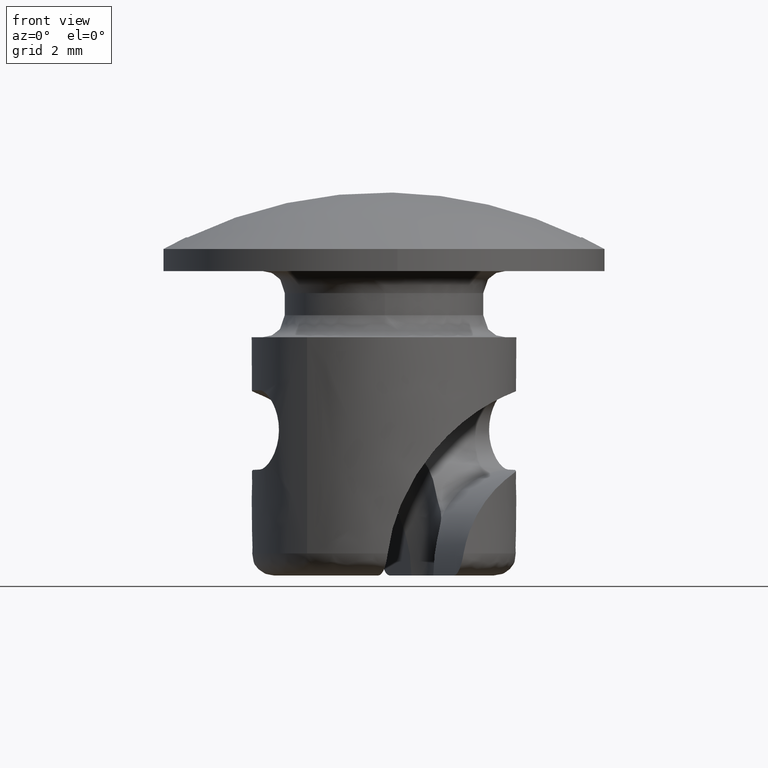
[diagram: clean part render]
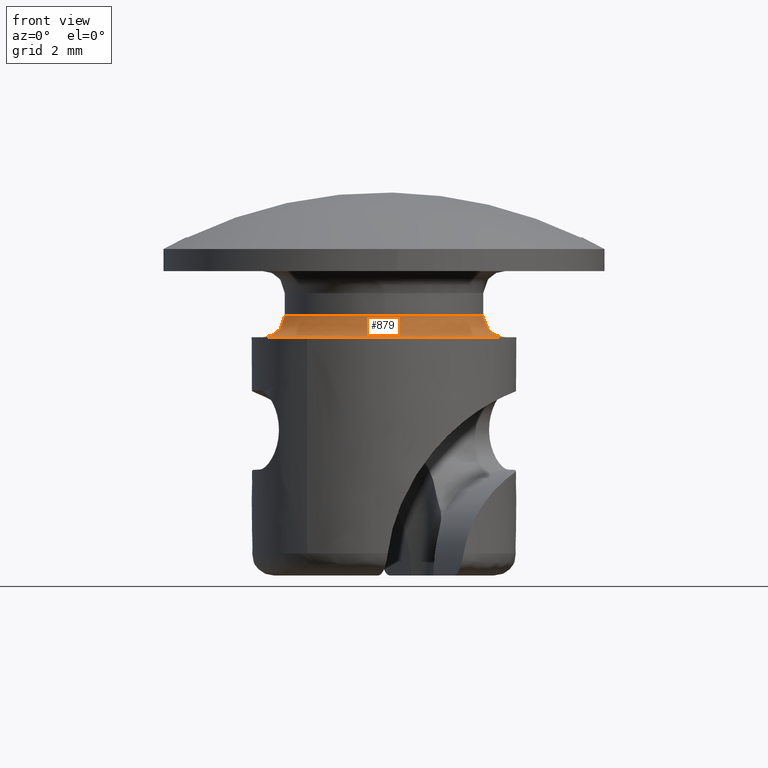
[diagram: same view with one face highlighted and labeled with its STEP entity id]
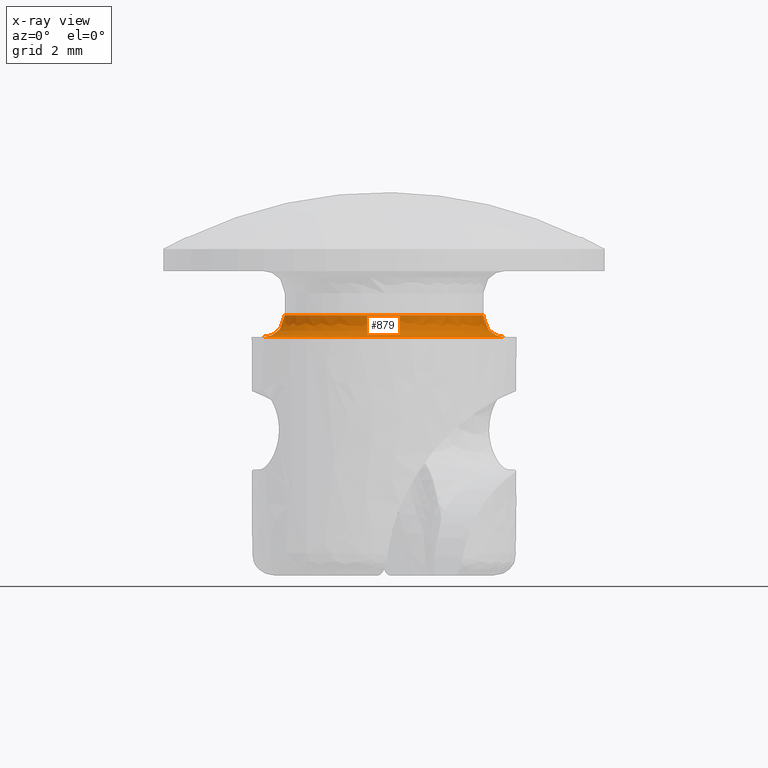
[diagram: x-ray of the same camera — body ghosted, the highlighted face saturated]
A machine part, front view. The second image highlights one B-rep face of the part: STEP entity #879.
The next image is the same camera in x-ray: the body ghosted, the highlighted face saturated — about 0% of this face is hidden behind the body in this view.
In plain terms, the highlighted face is a freeform B-spline surface patch.
Its self-contained STEP definition (entity closure, byte-faithful):
#642=CARTESIAN_POINT('',(-2.249822349458519,0.028273589742916,-1.000000019662934));
#643=VERTEX_POINT('',#642);
#657=CARTESIAN_POINT('',(-2.250000000000000,0.0,-1.0));
#658=VERTEX_POINT('',#657);
#659=CARTESIAN_POINT('',(-2.249822349458519,0.028273589742916,-1.000000019662934));
#660=CARTESIAN_POINT('',(-2.250000000000000,0.014137352984439,-1.000000009831467));
#661=CARTESIAN_POINT('',(-2.250000000000000,0.0,-1.0));
#669=(BOUNDED_CURVE()B_SPLINE_CURVE(2,(#659,#660,#661),.UNSPECIFIED.,.F.,.U.)B_SPLINE_CURVE_WITH_KNOTS((3,3),(0.497784295921308,0.500000000000000),.UNSPECIFIED.)CURVE()GEOMETRIC_REPRESENTATION_ITEM()RATIONAL_B_SPLINE_CURVE((0.994854295643046,0.997404141201815,1.0))REPRESENTATION_ITEM(''));
#670=EDGE_CURVE('',#643,#658,#669,.T.);
#672=CARTESIAN_POINT('',(0.019633703514247,-2.249914335632650,-1.000000009979010));
#673=VERTEX_POINT('',#672);
#674=CARTESIAN_POINT('',(-2.250000000000000,0.0,-1.0));
#675=CARTESIAN_POINT('',(-2.250000000000002,-2.249999999999890,-1.000000000061764));
#676=CARTESIAN_POINT('',(-2.370796E-015,-2.249999999999777,-1.000000009893222));
#677=CARTESIAN_POINT('',(0.009817038639434,-2.249999999999777,-1.000000009936118));
#678=CARTESIAN_POINT('',(0.019633703514247,-2.249914335632650,-1.000000009979010));
#686=(BOUNDED_CURVE()B_SPLINE_CURVE(2,(#674,#675,#676,#677,#678),.UNSPECIFIED.,.F.,.U.)B_SPLINE_CURVE_WITH_KNOTS((3,2,3),(0.500000000000000,0.750000000000000,0.751539815940075),.UNSPECIFIED.)CURVE()GEOMETRIC_REPRESENTATION_ITEM()RATIONAL_B_SPLINE_CURVE((1.0,0.707106781186547,1.0,0.998195993411725,0.996414209528255))REPRESENTATION_ITEM(''));
#687=EDGE_CURVE('',#658,#673,#686,.T.);
#745=CARTESIAN_POINT('',(2.249822349458519,-0.028273589742916,-1.000000019662934));
#746=VERTEX_POINT('',#745);
#747=CARTESIAN_POINT('',(0.019633703514247,-2.249914335632650,-1.000000009979010));
#748=CARTESIAN_POINT('',(2.222144457690948,-2.230694295807429,-1.000000019602452));
#749=CARTESIAN_POINT('',(2.249822349458519,-0.028273589742916,-1.000000019662934));
#757=(BOUNDED_CURVE()B_SPLINE_CURVE(2,(#747,#748,#749),.UNSPECIFIED.,.F.,.U.)B_SPLINE_CURVE_WITH_KNOTS((3,3),(0.751539815940075,0.997784295921308),.UNSPECIFIED.)CURVE()GEOMETRIC_REPRESENTATION_ITEM()RATIONAL_B_SPLINE_CURVE((0.996414209528255,0.711474669414962,0.994854295643046))REPRESENTATION_ITEM(''));
#758=EDGE_CURVE('',#673,#746,#757,.T.);
#776=CARTESIAN_POINT('',(-2.251032571150834,0.028288798632427,-0.965231445443377));
#777=CARTESIAN_POINT('',(-2.279321369783262,-2.222743772518409,-0.965231445443377));
#778=CARTESIAN_POINT('',(-0.028288798632427,-2.251032571150834,-0.965231445443377));
#779=CARTESIAN_POINT('',(2.222743772518409,-2.279321369783262,-0.965231445443377));
#780=CARTESIAN_POINT('',(2.251032571150834,-0.028288798632427,-0.965231445443377));
#781=CARTESIAN_POINT('',(-2.211056838643848,0.027786422317856,-1.538768587008877));
#782=CARTESIAN_POINT('',(-2.238843260961703,-2.183270416325992,-1.538768587008877));
#783=CARTESIAN_POINT('',(-0.027786422317856,-2.211056838643848,-1.538768587008877));
#784=CARTESIAN_POINT('',(2.183270416325992,-2.238843260961704,-1.538768587008877));
#785=CARTESIAN_POINT('',(2.211056838643848,-0.027786422317856,-1.538768587008877));
#786=CARTESIAN_POINT('',(-2.784548695000571,0.034993512899187,-1.498789681765882));
#787=CARTESIAN_POINT('',(-2.819542207899759,-2.749555182101385,-1.498789681765882));
#788=CARTESIAN_POINT('',(-0.034993512899188,-2.784548695000571,-1.498789681765882));
#789=CARTESIAN_POINT('',(2.749555182101383,-2.819542207899759,-1.498789681765882));
#790=CARTESIAN_POINT('',(2.784548695000571,-0.034993512899188,-1.498789681765882));
#798=(BOUNDED_SURFACE()B_SPLINE_SURFACE(2,2,((#776,#781,#786),(#777,#782,#787),(#778,#783,#788),(#779,#784,#789),(#780,#785,#790)),.UNSPECIFIED.,.F.,.F.,.U.)B_SPLINE_SURFACE_WITH_KNOTS((3,2,3),(3,3),(0.0,4.613955636771016,9.227911273542032),(0.0,0.911186972831271),.UNSPECIFIED.)GEOMETRIC_REPRESENTATION_ITEM()RATIONAL_B_SPLINE_SURFACE(((0.910479795090997,0.597479572841838,0.910479806786608),(0.643806437242182,0.422481857576905,0.643806445512228),(0.910479795090997,0.597479572841838,0.910479806786608),(0.643806437242182,0.422481857576905,0.643806445512228),(0.910479795090997,0.597479572841838,0.910479806786608)))REPRESENTATION_ITEM('')SURFACE());
#799=CARTESIAN_POINT('',(-2.750000000000000,0.0,-1.500000000000000));
#800=VERTEX_POINT('',#799);
#801=CARTESIAN_POINT('',(-2.749782871457951,0.034556609704881,-1.500000000000000));
#802=VERTEX_POINT('',#801);
#803=CARTESIAN_POINT('',(-2.750000000000000,0.0,-1.500000000000000));
#804=CARTESIAN_POINT('',(-2.749999999948897,0.017278986990529,-1.500000000000000));
#805=CARTESIAN_POINT('',(-2.749782871457951,0.034556609704881,-1.500000000000000));
#813=(BOUNDED_CURVE()B_SPLINE_CURVE(2,(#803,#804,#805),.UNSPECIFIED.,.F.,.U.)B_SPLINE_CURVE_WITH_KNOTS((3,3),(0.500000000000000,0.502215704079995),.UNSPECIFIED.)CURVE()GEOMETRIC_REPRESENTATION_ITEM()RATIONAL_B_SPLINE_CURVE((1.0,0.997404141200288,0.994854295640046))REPRESENTATION_ITEM(''));
#814=EDGE_CURVE('',#800,#802,#813,.T.);
#815=ORIENTED_EDGE('',*,*,#814,.F.);
#816=CARTESIAN_POINT('',(2.749782871457951,-0.034556609704881,-1.500000000000000));
#817=VERTEX_POINT('',#816);
#818=CARTESIAN_POINT('',(2.749782871457951,-0.034556609704881,-1.500000000000000));
#819=CARTESIAN_POINT('',(2.747963843637799,-0.180200622801869,-1.500000000000002));
#820=CARTESIAN_POINT('',(2.726773307944440,-0.409632511146633,-1.499999999999997));
#821=CARTESIAN_POINT('',(2.653023816965316,-0.743674427592064,-1.500000000000010));
#822=CARTESIAN_POINT('',(2.561828419979972,-1.014997617470203,-1.499999999999985));
#823=CARTESIAN_POINT('',(2.410811126748578,-1.340651714152773,-1.500000000000009));
#824=CARTESIAN_POINT('',(2.207934391103508,-1.658073544995574,-1.500000000000002));
#825=CARTESIAN_POINT('',(1.962259714803617,-1.935613547105659,-1.499999999999996));
#826=CARTESIAN_POINT('',(1.707375455338301,-2.163778426355508,-1.500000000000004));
#827=CARTESIAN_POINT('',(1.464099671955529,-2.335269907810566,-1.499999999999999));
#828=CARTESIAN_POINT('',(1.148764317977202,-2.506682372525859,-1.499999999999999));
#829=CARTESIAN_POINT('',(0.813781418562352,-2.637628801673019,-1.500000000000008));
#830=CARTESIAN_POINT('',(0.452295112550642,-2.719551512171643,-1.499999999999982));
#831=CARTESIAN_POINT('',(0.123002844251373,-2.752811472862538,-1.500000000000031));
#832=CARTESIAN_POINT('',(-0.151948089654178,-2.750242278685424,-1.500000000000079));
#833=CARTESIAN_POINT('',(-0.458539173729997,-2.717277304295866,-1.499999999999952));
#834=CARTESIAN_POINT('',(-0.749195881733652,-2.653156691019418,-1.500000000000019));
#835=CARTESIAN_POINT('',(-1.119484871884905,-2.522452926455895,-1.499999999999988));
#836=CARTESIAN_POINT('',(-1.443325969443220,-2.352635101163328,-1.500000000000033));
#837=CARTESIAN_POINT('',(-1.738071237791447,-2.137869832451000,-1.499999999999893));
#838=CARTESIAN_POINT('',(-1.995717265602174,-1.904237344984326,-1.500000000000086));
#839=CARTESIAN_POINT('',(-2.216546130225989,-1.641924055601921,-1.499999999999967));
#840=CARTESIAN_POINT('',(-2.426893124464455,-1.310335453980384,-1.500000000000001));
#841=CARTESIAN_POINT('',(-2.582830215498666,-0.973800310952502,-1.500000000000002));
#842=CARTESIAN_POINT('',(-2.715097680784529,-0.520980143797964,-1.499999999999999));
#843=CARTESIAN_POINT('',(-2.750029628710026,-0.196074181125510,-1.500000000000000));
#844=CARTESIAN_POINT('',(-2.750000000000000,0.0,-1.500000000000000));
#845=B_SPLINE_CURVE_WITH_KNOTS('',3,(#818,#819,#820,#821,#822,#823,#824,#825,#826,#827,#828,#829,#830,#831,#832,#833,#834,#835,#836,#837,#838,#839,#840,#841,#842,#843,#844),.UNSPECIFIED.,.F.,.U.,(4,1,1,1,1,1,1,1,1,1,1,1,1,1,1,1,1,1,1,1,1,1,1,1,4),(9.733931E-009,0.436964130405274,0.689053351498937,1.025181114046304,1.294083471213429,1.764662336466062,2.151209262758881,2.403304218995127,2.789851982694898,3.041946453926993,3.478910713665917,3.865458330771428,4.151163278776880,4.470475670235506,4.688960553522589,5.075507796042055,5.361215518162173,5.865403265374161,6.167919362739719,6.453626950681441,6.907398045044175,7.193105589027583,7.630070699270434,8.016620363876129,8.604835668774781),.UNSPECIFIED.);
#846=EDGE_CURVE('',#817,#800,#845,.T.);
#847=ORIENTED_EDGE('',*,*,#846,.F.);
#848=CARTESIAN_POINT('',(2.249822349458519,-0.028273589742916,-1.000000019662934));
#849=CARTESIAN_POINT('',(2.249822369119764,-0.028273590000788,-1.499999999897788));
#850=CARTESIAN_POINT('',(2.749782871457951,-0.034556609704881,-1.500000000000000));
#858=(BOUNDED_CURVE()B_SPLINE_CURVE(2,(#848,#849,#850),.UNSPECIFIED.,.F.,.U.)B_SPLINE_CURVE_WITH_KNOTS((3,3),(-1.725134602953325,-0.274865356927823),.UNSPECIFIED.)CURVE()GEOMETRIC_REPRESENTATION_ITEM()RATIONAL_B_SPLINE_CURVE((0.883342135264028,0.624617231359495,0.883342149578262))REPRESENTATION_ITEM(''));
#859=EDGE_CURVE('',#746,#817,#858,.T.);
#860=ORIENTED_EDGE('',*,*,#859,.F.);
#861=ORIENTED_EDGE('',*,*,#758,.F.);
#862=ORIENTED_EDGE('',*,*,#687,.F.);
#863=ORIENTED_EDGE('',*,*,#670,.F.);
#864=CARTESIAN_POINT('',(-2.249822349458519,0.028273589742916,-1.000000019662934));
#865=CARTESIAN_POINT('',(-2.249822369119764,0.028273590000788,-1.499999999897788));
#866=CARTESIAN_POINT('',(-2.749782871457951,0.034556609704881,-1.500000000000000));
#874=(BOUNDED_CURVE()B_SPLINE_CURVE(2,(#864,#865,#866),.UNSPECIFIED.,.F.,.U.)B_SPLINE_CURVE_WITH_KNOTS((3,3),(-1.725134602953325,-0.274865356927823),.UNSPECIFIED.)CURVE()GEOMETRIC_REPRESENTATION_ITEM()RATIONAL_B_SPLINE_CURVE((0.883342135264028,0.624617231359495,0.883342149578262))REPRESENTATION_ITEM(''));
#875=EDGE_CURVE('',#643,#802,#874,.T.);
#876=ORIENTED_EDGE('',*,*,#875,.T.);
#877=EDGE_LOOP('',(#815,#847,#860,#861,#862,#863,#876));
#878=FACE_OUTER_BOUND('',#877,.T.);
#879=ADVANCED_FACE('',(#878),#798,.F.);